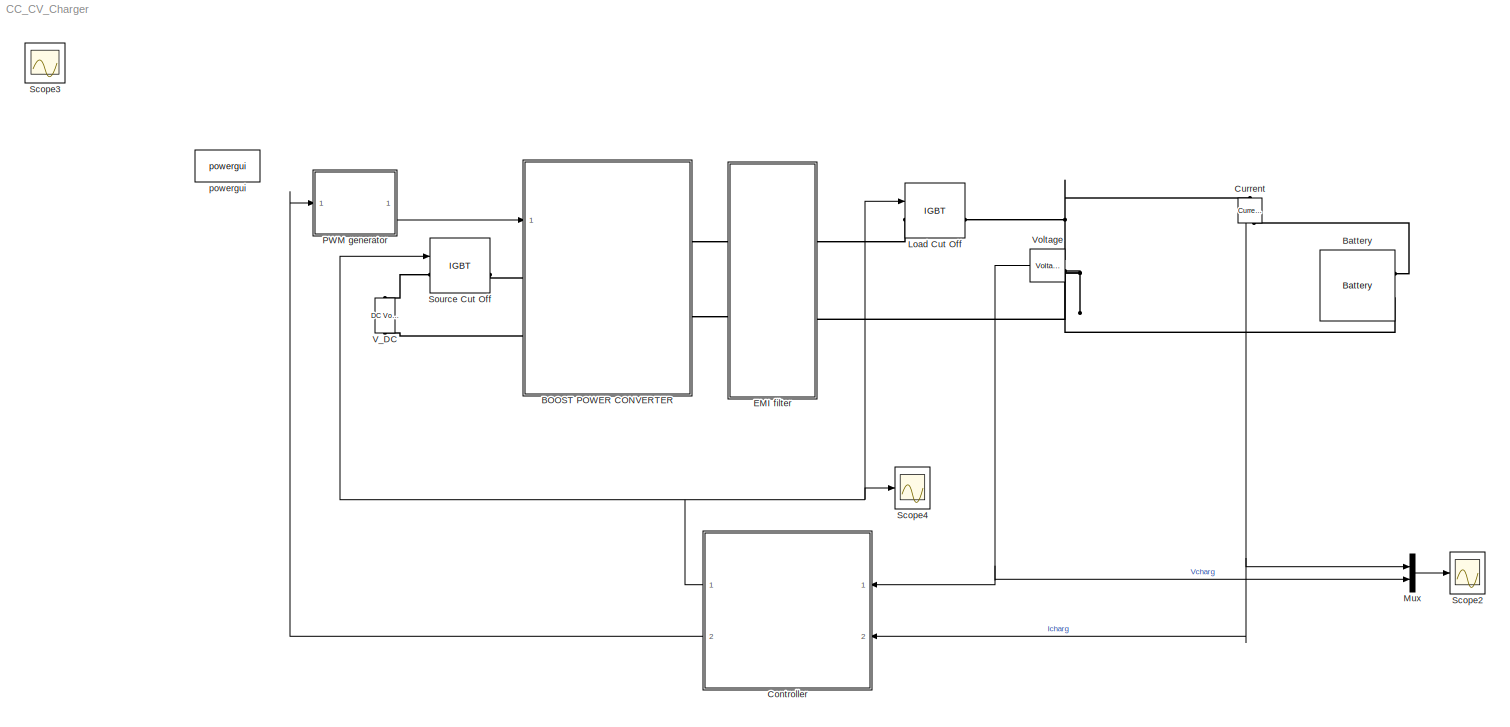
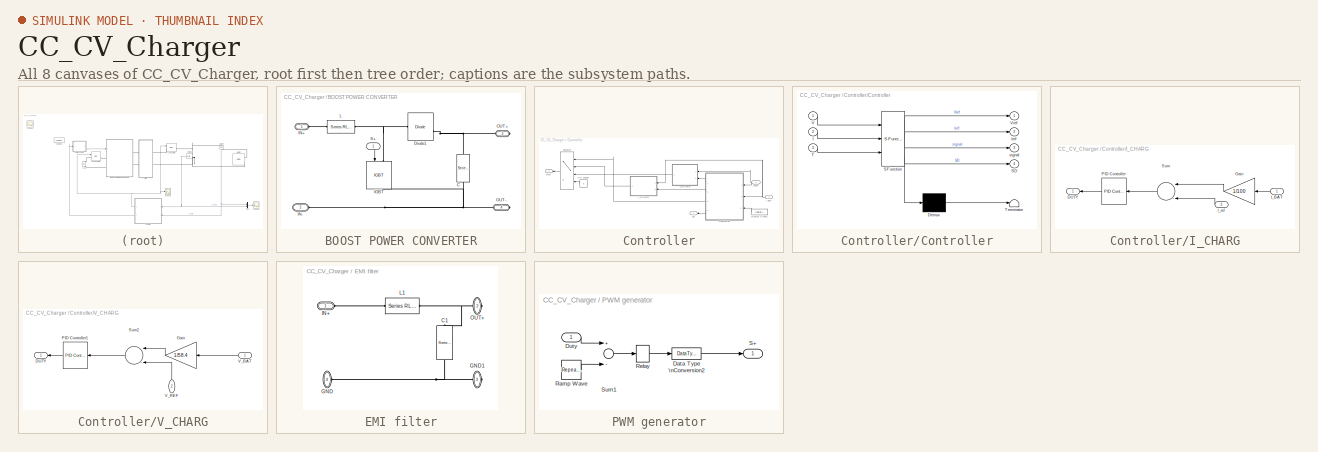
[diagram: thumbnail index - all 8 canvases of the model, root first then tree order]
MODEL CC_CV_Charger
KIND model
BLOCK [SubSystem] BOOST POWER CONVERTER
  Ports = [1, 0, 0, 0, 0, 2, 2]
  RequestExecContextInheritance = off
  SID = 297
BLOCK [Reference] BOOST POWER CONVERTER/ C  REF=powerlib/Elements/Series RLC Branch
  BranchType = C
  Capacitance = 100e-6
  Inductance = 0.05
  InitialCurrent = 0
  InitialVoltage = 0
  LConnTagsString = __new0
  Measurements = Branch voltage and current
  Ports = [0, 0, 0, 0, 0, 1, 1]
  RConnTagsString = __new0
  Resistance = 5
  SID = 179
  SetiL0 = off
  Setx0 = on
  SourceBlock = powerlib/Elements/Series RLC Branch
  SourceProductBaseCode = PS
  SourceProductName = Simscape Electrical
  SourceType = Series RLC Branch
BLOCK [Reference] BOOST POWER CONVERTER/ L  REF=powerlib/Elements/Series RLC Branch
  BranchType = L
  Capacitance = 1.0
  Inductance = 10e-6
  InitialCurrent = 0
  InitialVoltage = 0
  LConnTagsString = __new0
  Measurements = Branch voltage and current
  Ports = [0, 0, 0, 0, 0, 1, 1]
  RConnTagsString = __new0
  Resistance = 5
  SID = 181
  SetiL0 = on
  Setx0 = off
  SourceBlock = powerlib/Elements/Series RLC Branch
  SourceProductBaseCode = PS
  SourceProductName = Simscape Electrical
  SourceType = Series RLC Branch
BLOCK [Reference] BOOST POWER CONVERTER/Diode1  REF=powerlib/Power\nElectronics/Diode
  Cs = 1e-4
  IC = 0
  Lon = 0
  Measurements = on
  Ports = [0, 1, 0, 0, 0, 1, 1]
  Ron = 0.000001
  Rs = 1e4
  SID = 321
  SourceBlock = powerlib/Power\nElectronics/Diode
  SourceProductBaseCode = PS
  SourceProductName = Simscape Electrical
  SourceType = Diode
  UseSnubber = off
  Vf = 0.8
BLOCK [Reference] BOOST POWER CONVERTER/IGBT  REF=powerlib/Power\nElectronics/IGBT
  Cs = inf
  IC = 0
  Lon = 0
  Measurements = on
  Ports = [1, 1, 0, 0, 0, 1, 1]
  Ron = 0.018
  Rs = 1e5
  SID = 190
  SourceBlock = powerlib/Power\nElectronics/IGBT
  SourceProductBaseCode = PS
  SourceProductName = Simscape Electrical
  SourceType = IGBT
  Tf = 0
  Tt = 0
  Vf = 1
BLOCK [PMIOPort] BOOST POWER CONVERTER/IN+
  SID = 300
  Side = Left
BLOCK [PMIOPort] BOOST POWER CONVERTER/IN-
  Port = 2
  SID = 304
  Side = Left
BLOCK [PMIOPort] BOOST POWER CONVERTER/OUT+
  Port = 3
  SID = 301
  Side = Right
BLOCK [PMIOPort] BOOST POWER CONVERTER/OUT-
  Port = 4
  SID = 303
  Side = Right
BLOCK [Inport] BOOST POWER CONVERTER/S+
  IconDisplay = Port number
  SID = 302
BLOCK [Reference] Battery  REF=electricdrivelib/Extra Sources/Battery
  BatType = Lithium-Ion
  Batt_Tr = 30
  Dis_Char = off
  Dis_rate = 0
  FullV = 58.4
  MaxQ = 100
  NomQ = 100
  NomV = 48
  Normal_OP = 90.4348
  Ports = [0, 1, 0, 0, 0, 2]
  PresetModel = off
  R = 0.0048
  SID = 183
  SOC = 99.7
  ShowDetailedParameters = off
  SourceBlock = electricdrivelib/Extra Sources/Battery
  SourceProductBaseCode = PS
  SourceProductName = Simscape Electrical
  SourceType = Battery
  Units = Ampere-hour
  current = [20 100]
  expZone = [51.8585      4.91304]
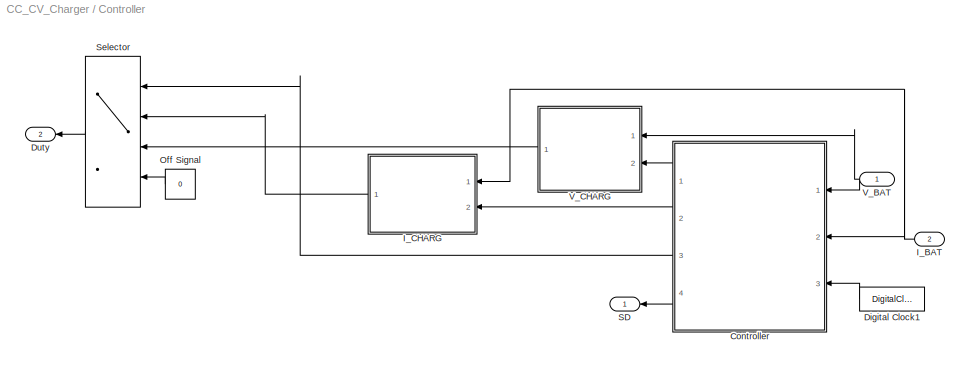
BLOCK [SubSystem] Controller
  Ports = [2, 2]
  RequestExecContextInheritance = off
  SID = 245
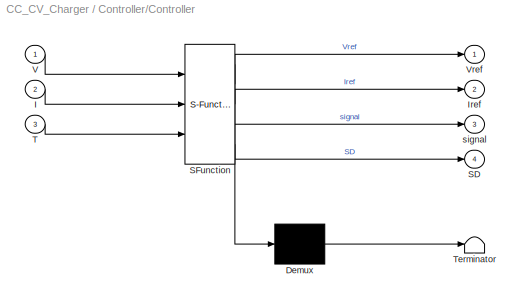
BLOCK [SubSystem] Controller/Controller
  ErrorFcn = Stateflow.Translate.translate
  PermitHierarchicalResolution = ExplicitOnly
  Ports = [3, 4]
  RequestExecContextInheritance = off
  SFBlockType = MATLAB Function
  SID = 227
  TreatAsAtomicUnit = on
BLOCK [Demux] Controller/Controller/ Demux 
  Outputs = 1
  Ports = [1, 1]
  SID = 227::38
BLOCK [S-Function] Controller/Controller/ SFunction 
  EnableBusSupport = off
  FunctionName = sf_sfun
  PortCounts = [3 5]
  Ports = [3, 5]
  SFcnIsStateOwnerBlock = off
  SFunctionDeploymentMode = off
  SID = 227::37
  Tag = Stateflow S-Function 1
BLOCK [Terminator] Controller/Controller/ Terminator 
  SID = 227::39
BLOCK [Inport] Controller/Controller/I
  IconDisplay = Port number
  Port = 2
  SID = 227::2
BLOCK [Outport] Controller/Controller/Iref
  IconDisplay = Port number
  Port = 2
  SID = 227::33
BLOCK [Outport] Controller/Controller/SD
  IconDisplay = Port number
  Port = 4
  SID = 227::36
BLOCK [Inport] Controller/Controller/T
  IconDisplay = Port number
  Port = 3
  SID = 227::3
BLOCK [Inport] Controller/Controller/V
  IconDisplay = Port number
  SID = 227::1
BLOCK [Outport] Controller/Controller/Vref
  IconDisplay = Port number
  SID = 227::34
BLOCK [Outport] Controller/Controller/signal
  IconDisplay = Port number
  Port = 3
  SID = 227::35
BLOCK [DigitalClock] Controller/Digital Clock1
  SID = 228
  SampleTime = 0.001
BLOCK [Outport] Controller/Duty
  IconDisplay = Port number
  Port = 2
  SID = 248
BLOCK [Inport] Controller/I_BAT
  IconDisplay = Port number
  Port = 2
  SID = 246
BLOCK [SubSystem] Controller/I_CHARG
  Ports = [2, 1]
  RequestExecContextInheritance = off
  SID = 192
BLOCK [Outport] Controller/I_CHARG/DUTY
  IconDisplay = Port number
  SID = 198
BLOCK [Gain] Controller/I_CHARG/Gain
  Gain = 1/100
  OutDataTypeStr = Inherit: Inherit via internal rule
  ParamDataTypeStr = Inherit: Inherit via internal rule
  SID = 195
  SaturateOnIntegerOverflow = off
BLOCK [Inport] Controller/I_CHARG/I_BAT
  IconDisplay = Port number
  SID = 193
BLOCK [Inport] Controller/I_CHARG/I_ref
  IconDisplay = Port number
  Port = 2
  SID = 194
BLOCK [Reference] Controller/I_CHARG/PID Controller  REF=simulink/Continuous/PID Controller
  AntiWindupMode = none
  Controller = PID
  D = 3*2.7e-06
  DOutDataTypeStr = Inherit: Inherit via internal rule
  DOutMax = []
  DOutMin = []
  DParamDataTypeStr = Inherit: Inherit via internal rule
  DParamMax = []
  DParamMin = []
  ExternalReset = none
  FilterContinuousStateAttributes = ''
  FilterMethod = Forward Euler
  FilterOutDataTypeStr = Inherit: Inherit via internal rule
  FilterOutMax = []
  FilterOutMin = []
  FilterRTWStateStorageClass = Auto
  FilterStateMustResolveToSignalObject = off
  Form = Parallel
  I = 50
  IOutDataTypeStr = Inherit: Inherit via internal rule
  IOutMax = []
  IOutMin = []
  IParamDataTypeStr = Inherit: Inherit via internal rule
  IParamMax = []
  IParamMin = []
  IgnoreLimit = off
  InitialConditionForFilter = 0
  InitialConditionForIntegrator = 0
  InitialConditionSource = internal
  IntegratorContinuousStateAttributes = ''
  IntegratorMethod = Forward Euler
  IntegratorOutDataTypeStr = Inherit: Inherit via internal rule
  IntegratorOutMax = []
  IntegratorOutMin = []
  IntegratorRTWStateStorageClass = Auto
  IntegratorStateMustResolveToSignalObject = off
  Kb = 1
  KbOutDataTypeStr = Inherit: Inherit via internal rule
  KbOutMax = []
  KbOutMin = []
  KbParamDataTypeStr = Inherit: Inherit via internal rule
  KbParamMax = []
  KbParamMin = []
  Kt = 1
  KtOutDataTypeStr = Inherit: Inherit via internal rule
  KtOutMax = []
  KtOutMin = []
  KtParamDataTypeStr = Inherit: Inherit via internal rule
  KtParamMax = []
  KtParamMin = []
  LimitOutput = on
  LinearizeAsGain = off
  LockScale = off
  LowerSaturationLimit = 0
  N = 100
  NOutDataTypeStr = Inherit: Inherit via internal rule
  NOutMax = []
  NOutMin = []
  NParamDataTypeStr = Inherit: Inherit via internal rule
  NParamMax = []
  NParamMin = []
  P = 0.75
  POutDataTypeStr = Inherit: Inherit via internal rule
  POutMax = []
  POutMin = []
  PParamDataTypeStr = Inherit: Inherit via internal rule
  PParamMax = []
  PParamMin = []
  Ports = [1, 1]
  RndMeth = Floor
  SID = 196
  SampleTime = 1/f
  SaturateOnIntegerOverflow = off
  SaturationOutDataTypeStr = Inherit: Same as input
  SaturationOutMax = []
  SaturationOutMin = []
  SourceBlock = simulink/Continuous/PID Controller
  SourceProductBaseCode = SL
  SourceProductName = Simulink
  SourceType = PID 1dof
  SumAccumDataTypeStr = Inherit: Inherit via internal rule
  SumDAccumDataTypeStr = Inherit: Inherit via internal rule
  SumDOutDataTypeStr = Inherit: Inherit via internal rule
  SumDOutMax = []
  SumDOutMin = []
  SumI1AccumDataTypeStr = Inherit: Inherit via internal rule
  SumI1OutDataTypeStr = Inherit: Inherit via internal rule
  SumI1OutMax = []
  SumI1OutMin = []
  SumI2AccumDataTypeStr = Inherit: Inherit via internal rule
  SumI2OutDataTypeStr = Inherit: Inherit via internal rule
  SumI2OutMax = []
  SumI2OutMin = []
  SumI3AccumDataTypeStr = Inherit: Inherit via internal rule
  SumI3OutDataTypeStr = Inherit: Inherit via internal rule
  SumI3OutMax = []
  SumI3OutMin = []
  SumOutDataTypeStr = Inherit: Inherit via internal rule
  SumOutMax = []
  SumOutMin = []
  TimeDomain = Continuous-time
  TrackingMode = off
  UpperSaturationLimit = 0.9
  ZeroCross = on
BLOCK [Sum] Controller/I_CHARG/Sum
  InputSameDT = off
  Inputs = |-+
  OutDataTypeStr = Inherit: Inherit via internal rule
  Ports = [2, 1]
  SID = 197
  SaturateOnIntegerOverflow = off
BLOCK [Constant] Controller/Off Signal
  SID = 230
  Value = 0
BLOCK [Outport] Controller/SD
  IconDisplay = Port number
  SID = 316
BLOCK [MultiPortSwitch] Controller/Selector
  DiagnosticForDefault = None
  InputSameDT = off
  Ports = [4, 1]
  SID = 229
  SaturateOnIntegerOverflow = off
BLOCK [Inport] Controller/V_BAT
  IconDisplay = Port number
  SID = 247
BLOCK [SubSystem] Controller/V_CHARG
  Ports = [2, 1]
  RequestExecContextInheritance = off
  SID = 209
BLOCK [Outport] Controller/V_CHARG/DUTY
  IconDisplay = Port number
  SID = 215
BLOCK [Gain] Controller/V_CHARG/Gain
  Gain = 1/58.4
  OutDataTypeStr = Inherit: Inherit via internal rule
  ParamDataTypeStr = Inherit: Inherit via internal rule
  SID = 221
  SaturateOnIntegerOverflow = off
BLOCK [Reference] Controller/V_CHARG/PID Controller1  REF=simulink/Continuous/PID Controller
  AntiWindupMode = none
  Controller = PID
  D = 2.7e-06
  DOutDataTypeStr = Inherit: Inherit via internal rule
  DOutMax = []
  DOutMin = []
  DParamDataTypeStr = Inherit: Inherit via internal rule
  DParamMax = []
  DParamMin = []
  ExternalReset = none
  FilterContinuousStateAttributes = ''
  FilterMethod = Forward Euler
  FilterOutDataTypeStr = Inherit: Inherit via internal rule
  FilterOutMax = []
  FilterOutMin = []
  FilterRTWStateStorageClass = Auto
  FilterStateMustResolveToSignalObject = off
  Form = Parallel
  I = 150
  IOutDataTypeStr = Inherit: Inherit via internal rule
  IOutMax = []
  IOutMin = []
  IParamDataTypeStr = Inherit: Inherit via internal rule
  IParamMax = []
  IParamMin = []
  IgnoreLimit = off
  InitialConditionForFilter = 0
  InitialConditionForIntegrator = 0
  InitialConditionSource = internal
  IntegratorContinuousStateAttributes = ''
  IntegratorMethod = Forward Euler
  IntegratorOutDataTypeStr = Inherit: Inherit via internal rule
  IntegratorOutMax = []
  IntegratorOutMin = []
  IntegratorRTWStateStorageClass = Auto
  IntegratorStateMustResolveToSignalObject = off
  Kb = 1
  KbOutDataTypeStr = Inherit: Inherit via internal rule
  KbOutMax = []
  KbOutMin = []
  KbParamDataTypeStr = Inherit: Inherit via internal rule
  KbParamMax = []
  KbParamMin = []
  Kt = 1
  KtOutDataTypeStr = Inherit: Inherit via internal rule
  KtOutMax = []
  KtOutMin = []
  KtParamDataTypeStr = Inherit: Inherit via internal rule
  KtParamMax = []
  KtParamMin = []
  LimitOutput = on
  LinearizeAsGain = off
  LockScale = off
  LowerSaturationLimit = 0
  N = 100
  NOutDataTypeStr = Inherit: Inherit via internal rule
  NOutMax = []
  NOutMin = []
  NParamDataTypeStr = Inherit: Inherit via internal rule
  NParamMax = []
  NParamMin = []
  P = 0.65
  POutDataTypeStr = Inherit: Inherit via internal rule
  POutMax = []
  POutMin = []
  PParamDataTypeStr = Inherit: Inherit via internal rule
  PParamMax = []
  PParamMin = []
  Ports = [1, 1]
  RndMeth = Floor
  SID = 212
  SampleTime = 1/f
  SaturateOnIntegerOverflow = off
  SaturationOutDataTypeStr = Inherit: Same as input
  SaturationOutMax = []
  SaturationOutMin = []
  SourceBlock = simulink/Continuous/PID Controller
  SourceProductBaseCode = SL
  SourceProductName = Simulink
  SourceType = PID 1dof
  SumAccumDataTypeStr = Inherit: Inherit via internal rule
  SumDAccumDataTypeStr = Inherit: Inherit via internal rule
  SumDOutDataTypeStr = Inherit: Inherit via internal rule
  SumDOutMax = []
  SumDOutMin = []
  SumI1AccumDataTypeStr = Inherit: Inherit via internal rule
  SumI1OutDataTypeStr = Inherit: Inherit via internal rule
  SumI1OutMax = []
  SumI1OutMin = []
  SumI2AccumDataTypeStr = Inherit: Inherit via internal rule
  SumI2OutDataTypeStr = Inherit: Inherit via internal rule
  SumI2OutMax = []
  SumI2OutMin = []
  SumI3AccumDataTypeStr = Inherit: Inherit via internal rule
  SumI3OutDataTypeStr = Inherit: Inherit via internal rule
  SumI3OutMax = []
  SumI3OutMin = []
  SumOutDataTypeStr = Inherit: Inherit via internal rule
  SumOutMax = []
  SumOutMin = []
  TimeDomain = Continuous-time
  TrackingMode = off
  UpperSaturationLimit = 0.9
  ZeroCross = on
BLOCK [Sum] Controller/V_CHARG/Sum2
  InputSameDT = off
  Inputs = |-+
  OutDataTypeStr = Inherit: Inherit via internal rule
  Ports = [2, 1]
  SID = 213
  SaturateOnIntegerOverflow = off
BLOCK [Inport] Controller/V_CHARG/V_BAT
  IconDisplay = Port number
  SID = 210
BLOCK [Inport] Controller/V_CHARG/V_REF
  IconDisplay = Port number
  Port = 2
  SID = 216
BLOCK [Reference] Current  REF=powerlib/Measurements/Current Measurement
  OutputType = Complex
  PSBequivalent = 0
  PhasorSimulation = off
  Ports = [0, 1, 0, 0, 0, 1, 1]
  SID = 186
  SourceBlock = powerlib/Measurements/Current Measurement
  SourceProductBaseCode = PS
  SourceProductName = Simscape Electrical
  SourceType = Current Measurement
BLOCK [SubSystem] EMI filter
  Ports = [0, 0, 0, 0, 0, 2, 2]
  RequestExecContextInheritance = off
  SID = 310
BLOCK [Reference] EMI filter/ C1  REF=powerlib/Elements/Series RLC Branch
  BranchType = C
  Capacitance = 1000e-6
  Inductance = 0.05
  InitialCurrent = 0
  InitialVoltage = 48
  LConnTagsString = __new0
  Measurements = Branch voltage and current
  Ports = [0, 0, 0, 0, 0, 1, 1]
  RConnTagsString = __new0
  Resistance = 5
  SID = 320
  SetiL0 = off
  Setx0 = on
  SourceBlock = powerlib/Elements/Series RLC Branch
  SourceProductBaseCode = PS
  SourceProductName = Simscape Electrical
  SourceType = Series RLC Branch
BLOCK [Reference] EMI filter/ L1  REF=powerlib/Elements/Series RLC Branch
  BranchType = L
  Capacitance = 1.0
  Inductance = 0.005
  InitialCurrent = 0
  InitialVoltage = 0
  LConnTagsString = __new0
  Measurements = Branch voltage and current
  Ports = [0, 0, 0, 0, 0, 1, 1]
  RConnTagsString = __new0
  Resistance = 5
  SID = 226
  SetiL0 = on
  Setx0 = off
  SourceBlock = powerlib/Elements/Series RLC Branch
  SourceProductBaseCode = PS
  SourceProductName = Simscape Electrical
  SourceType = Series RLC Branch
BLOCK [PMIOPort] EMI filter/GND
  Port = 4
  SID = 314
  Side = Left
BLOCK [PMIOPort] EMI filter/GND1
  Port = 3
  SID = 313
  Side = Right
BLOCK [PMIOPort] EMI filter/IN+
  SID = 311
  Side = Left
BLOCK [PMIOPort] EMI filter/OUT+
  Port = 2
  SID = 312
  Side = Right
BLOCK [Reference] Load Cut Off  REF=powerlib/Power\nElectronics/IGBT
  Cs = inf
  IC = 0
  Lon = 0
  Measurements = on
  Ports = [1, 1, 0, 0, 0, 1, 1]
  Ron = 0.018
  Rs = 1e5
  SID = 323
  SourceBlock = powerlib/Power\nElectronics/IGBT
  SourceProductBaseCode = PS
  SourceProductName = Simscape Electrical
  SourceType = IGBT
  Tf = 0
  Tt = 0
  Vf = 0.3
BLOCK [Mux] Mux
  DisplayOption = bar
  Inputs = 2
  Ports = [2, 1]
  SID = 330
BLOCK [SubSystem] PWM generator
  Ports = [1, 1]
  RequestExecContextInheritance = off
  SID = 293
BLOCK [DataTypeConversion] PWM generator/Data Type \nConversion2
  OutDataTypeStr = boolean
  SID = 188
BLOCK [Inport] PWM generator/Duty
  IconDisplay = Port number
  SID = 295
BLOCK [Reference] PWM generator/Ramp Wave  REF=simulink/Sources/Repeating\nSequence
  Ports = [0, 1]
  SID = 199
  SourceBlock = simulink/Sources/Repeating\nSequence
  SourceProductBaseCode = SL
  SourceProductName = Simulink
  SourceType = Repeating table
  rep_seq_t = [0 1/20e3]
  rep_seq_y = [0 1]
BLOCK [Relay] PWM generator/Relay
  SID = 200
BLOCK [Outport] PWM generator/S+
  IconDisplay = Port number
  SID = 296
BLOCK [Sum] PWM generator/Sum1
  Inputs = +-
  Ports = [2, 1]
  SID = 205
BLOCK [Scope] Scope2
  Floating = off
  NumInputPorts = 1
  Ports = [1]
  SID = 331
  ScopeSpecificationString = C++SS(StrPVP('Location','[5, 68, 1371, 762]'),StrPVP('Open','off'),StrPVP('TickLabels','on'),StrPVP('ZoomMode','yonly'),MxPVP('AxesTitles',54,'struct(''axes1'',''%<SignalLabel>'')'),MxPVP('ScopeGraphics',57,'struct(''FigureColor'',''[0.5 0.5 0.5]'',''AxesColor'',''[0 0 0]'',''AxesTickColor'',''[1 1 1]'',''LineColors'',''[1 1 0;1 0 1;0 1 1;1 0 0;0 1 0;0 0 1]'',''LineStyles'',''-|-|-|-|-|-'',''LineW...<+362ch>
BLOCK [Scope] Scope3
  Floating = off
  IOType = viewer
  NumInputPorts = 1
  Ports = []
  SID = 65
  ScopeSpecificationString = C++SS(StrPVP('Location','[188, 365, 512, 604]'),StrPVP('Open','off'),StrPVP('ZoomMode','xonly'),MxPVP('AxesTitles',54,'struct(''axes1'',''%<SignalLabel>'')'),StrPVP('ShowDataMarkers','off'),StrPVP('ShowLegends','off'),StrPVP('DataFormat','Array'),StrPVP('MaxDataPoints','7500'),StrPVP('LimitDataPoints','on'),StrPVP('Decimation','1'),StrPVP('BlockParamSampleInput','off'))
BLOCK [Scope] Scope4
  Floating = off
  NumInputPorts = 1
  Ports = [1]
  SID = 319
  ScopeSpecificationString = C++SS(StrPVP('Location','[5, 68, 1371, 762]'),StrPVP('Open','off'),StrPVP('TickLabels','on'),StrPVP('ZoomMode','yonly'),MxPVP('AxesTitles',54,'struct(''axes1'',''%<SignalLabel>'')'),MxPVP('ScopeGraphics',57,'struct(''FigureColor'',''[0.5 0.5 0.5]'',''AxesColor'',''[0 0 0]'',''AxesTickColor'',''[1 1 1]'',''LineColors'',''[1 1 0;1 0 1;0 1 1;1 0 0;0 1 0;0 0 1]'',''LineStyles'',''-|-|-|-|-|-'',''LineW...<+365ch>
BLOCK [Reference] Source Cut Off  REF=powerlib/Power\nElectronics/IGBT
  Cs = inf
  IC = 0
  Lon = 0
  Measurements = on
  Ports = [1, 1, 0, 0, 0, 1, 1]
  Ron = 0.00001
  Rs = 1e5
  SID = 329
  SourceBlock = powerlib/Power\nElectronics/IGBT
  SourceProductBaseCode = PS
  SourceProductName = Simscape Electrical
  SourceType = IGBT
  Tf = 0
  Tt = 0
  Vf = 0.3
BLOCK [Reference] V_DC  REF=powerlib/Electrical\nSources/DC Voltage Source
  Amplitude = 32
  Measurements = Voltage
  Ports = [0, 0, 0, 0, 0, 1, 1]
  SID = 206
  SourceBlock = powerlib/Electrical\nSources/DC Voltage Source
  SourceProductBaseCode = PS
  SourceProductName = Simscape Electrical
  SourceType = DC Voltage Source
BLOCK [Reference] Voltage  REF=powerlib/Measurements/Voltage Measurement
  OutputType = Complex
  PSBequivalent = 0
  PhasorSimulation = off
  Ports = [0, 1, 0, 0, 0, 2]
  SID = 207
  SourceBlock = powerlib/Measurements/Voltage Measurement
  SourceProductBaseCode = PS
  SourceProductName = Simscape Electrical
  SourceType = Voltage Measurement
BLOCK [Reference] powergui  REF=powerlib/powergui
  DisableRonSwitches = off
  DisableSnubberDevices = off
  DisableVfSwitches = off
  DisplayEquations = off
  DisplayStyle = 1
  EnableUseOfTLC = off
  ErrMax = 1e-4
  Frange = [0:2:500]
  FreqAxis = off
  FunctionMessages = off
  HookPort = off
  Interpol = off
  Iterations = 50
  MaxFrequency = 50000
  Pbase = 100e6
  Ports = []
  ResistiveCurrentMeasurement = off
  RestoreLinks = warning
  RmsSteady = 1
  SID = 208
  SPID = off
  SampleTime = 1e-6
  ShowGrid = off
  SolverType = Tustin
  SourceBlock = powerlib/powergui
  SourceProductBaseCode = PS
  SourceProductName = Simscape Electrical
  SourceType = PSB option menu block
  StartTime = 0.04
  SwTol = 0
  Ts = 0
  UnitsV = kV
  UnitsW = MW
  UserData = DataTag0
  UserDataPersistent = on
  Xlog = on
  Ylog = off
  ZoomFFT = off
  cycles = 2
  display = off
  echomessages = off
  frequency = 60
  frequencyindice = 0
  frequencyindicesteady = 1
  fundamental = 1000
  methode = off
  save = off
  structure = ScopeData
  variable = ZData
  x0status = blocks
LINE BOOST POWER CONVERTER/S+:1 -> BOOST POWER CONVERTER/IGBT:1
LINE Controller/Controller/ Demux :1 -> Controller/Controller/ Terminator :1
LINE Controller/Controller/ SFunction :1 -> Controller/Controller/ Demux :1
LINE Controller/Controller/ SFunction :2 -> Controller/Controller/Vref:1
LINE Controller/Controller/ SFunction :3 -> Controller/Controller/Iref:1
LINE Controller/Controller/ SFunction :4 -> Controller/Controller/signal:1
LINE Controller/Controller/ SFunction :5 -> Controller/Controller/SD:1
LINE Controller/Controller/I:1 -> Controller/Controller/ SFunction :2
LINE Controller/Controller/T:1 -> Controller/Controller/ SFunction :3
LINE Controller/Controller/V:1 -> Controller/Controller/ SFunction :1
LINE Controller/Controller:1 -> Controller/V_CHARG:2
LINE Controller/Controller:2 -> Controller/I_CHARG:2
LINE Controller/Controller:3 -> Controller/Selector:1
LINE Controller/Controller:4 -> Controller/SD:1
LINE Controller/Digital Clock1:1 -> Controller/Controller:3
NET Controller/I_BAT:1 -> Controller/Controller:2, Controller/I_CHARG:1
LINE Controller/I_CHARG/Gain:1 -> Controller/I_CHARG/Sum:1
LINE Controller/I_CHARG/I_BAT:1 -> Controller/I_CHARG/Gain:1
LINE Controller/I_CHARG/I_ref:1 -> Controller/I_CHARG/Sum:2
LINE Controller/I_CHARG/PID Controller:1 -> Controller/I_CHARG/DUTY:1
LINE Controller/I_CHARG/Sum:1 -> Controller/I_CHARG/PID Controller:1
LINE Controller/I_CHARG:1 -> Controller/Selector:2
LINE Controller/Off Signal:1 -> Controller/Selector:4
LINE Controller/Selector:1 -> Controller/Duty:1
NET Controller/V_BAT:1 -> Controller/Controller:1, Controller/V_CHARG:1
LINE Controller/V_CHARG/Gain:1 -> Controller/V_CHARG/Sum2:1
LINE Controller/V_CHARG/PID Controller1:1 -> Controller/V_CHARG/DUTY:1
LINE Controller/V_CHARG/Sum2:1 -> Controller/V_CHARG/PID Controller1:1
LINE Controller/V_CHARG/V_BAT:1 -> Controller/V_CHARG/Gain:1
LINE Controller/V_CHARG/V_REF:1 -> Controller/V_CHARG/Sum2:2
LINE Controller/V_CHARG:1 -> Controller/Selector:3
NET Controller:1 -> Load Cut Off:1, Scope4:1, Source Cut Off:1
LINE Controller:2 -> PWM generator:1
NET Current:1 -> Controller:2, Mux:1
LINE Mux:1 -> Scope2:1
LINE PWM generator/Data Type \nConversion2:1 -> PWM generator/S+:1
LINE PWM generator/Duty:1 -> PWM generator/Sum1:1
LINE PWM generator/Ramp Wave:1 -> PWM generator/Sum1:2
LINE PWM generator/Relay:1 -> PWM generator/Data Type \nConversion2:1
LINE PWM generator/Sum1:1 -> PWM generator/Relay:1
LINE PWM generator:1 -> BOOST POWER CONVERTER:1
NET Voltage:1 -> Controller:1, Mux:2
PNET net1: BOOST POWER CONVERTER/ C:LConn1 -- BOOST POWER CONVERTER/Diode1:RConn1 -- BOOST POWER CONVERTER/OUT+:RConn1
PNET net2: BOOST POWER CONVERTER/ C:RConn1 -- BOOST POWER CONVERTER/IGBT:RConn1 -- BOOST POWER CONVERTER/IN-:RConn1 -- BOOST POWER CONVERTER/OUT-:RConn1
PLINE BOOST POWER CONVERTER/ L:LConn1 -- BOOST POWER CONVERTER/IN+:RConn1
PNET net3: BOOST POWER CONVERTER/ L:RConn1 -- BOOST POWER CONVERTER/Diode1:LConn1 -- BOOST POWER CONVERTER/IGBT:LConn1
PLINE BOOST POWER CONVERTER:LConn1 -- Source Cut Off:RConn1
PLINE BOOST POWER CONVERTER:LConn2 -- V_DC:LConn1
PLINE BOOST POWER CONVERTER:RConn1 -- EMI filter:LConn1
PLINE BOOST POWER CONVERTER:RConn2 -- EMI filter:LConn2
PLINE Battery:LConn1 -- Current:RConn1
PNET net4: Battery:LConn2 -- EMI filter:RConn2 -- Voltage:LConn2
PNET net5: Current:LConn1 -- Load Cut Off:RConn1 -- Voltage:LConn1
PNET net6: EMI filter/ C1:LConn1 -- EMI filter/ L1:RConn1 -- EMI filter/OUT+:RConn1
PNET net7: EMI filter/ C1:RConn1 -- EMI filter/GND1:RConn1 -- EMI filter/GND:RConn1
PLINE EMI filter/ L1:LConn1 -- EMI filter/IN+:RConn1
PLINE EMI filter:RConn1 -- Load Cut Off:LConn1
PLINE Source Cut Off:LConn1 -- V_DC:RConn1
note: NET lines group one-source signal fan-out (src -> all destinations, sorted); 1:1 wires keep LINE; PNET lines group multi-terminal physical nets as a canonical sorted terminal list (undirected conserving connections); 2-terminal nets keep the pairwise PLINE form
CHART Controller/Controller states=1 transitions=1
  STATE_LABEL 'eML_blk_kernel()'
